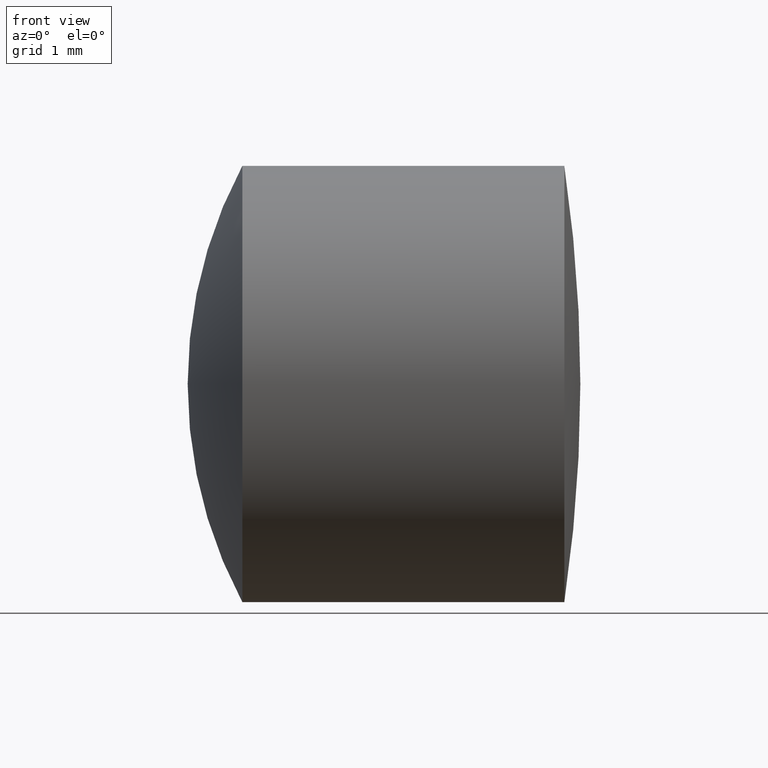
[diagram: clean part render]
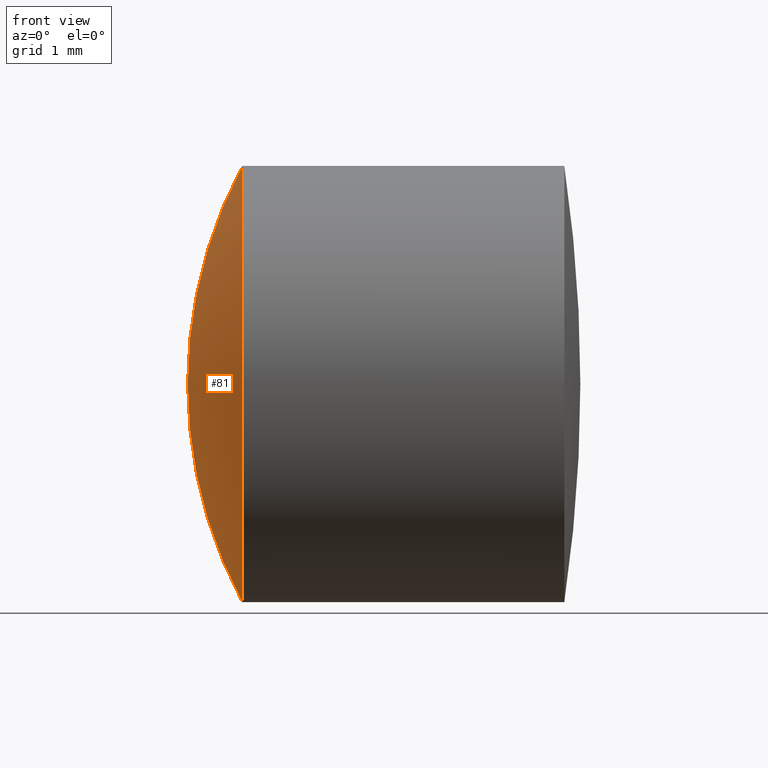
[diagram: same view with one face highlighted and labeled with its STEP entity id]
A machine part, front view. The second image highlights one B-rep face of the part: STEP entity #81.
In plain terms, the highlighted spherical surface has radius 5.3 mm.
Its self-contained STEP definition (entity closure, byte-faithful):
#7 = ORIENTED_EDGE ( 'NONE', *, *, #286, .F. ) ;
#9 = DIRECTION ( 'NONE',  ( 0.0000000000000000000, 0.0000000000000000000, 1.000000000000000000 ) ) ;
#11 = SPHERICAL_SURFACE ( 'NONE', #292, 5.299999999999998900 ) ;
#16 = DIRECTION ( 'NONE',  ( 0.0000000000000000000, 0.0000000000000000000, 1.000000000000000000 ) ) ;
#23 = DIRECTION ( 'NONE',  ( -0.0000000000000000000, 1.000000000000000000, 1.224646799147353200E-016 ) ) ;
#26 = CARTESIAN_POINT ( 'NONE',  ( 1.904885754841989100, 0.0000000000000000000, 0.0000000000000000000 ) ) ;
#37 = EDGE_CURVE ( 'NONE', #245, #266, #238, .T. ) ;
#53 = EDGE_CURVE ( 'NONE', #210, #245, #65, .T. ) ;
#65 = CIRCLE ( 'NONE', #181, 2.500000000000000000 ) ;
#81 = ADVANCED_FACE ( 'NONE', ( #105 ), #11, .T. ) ;
#82 = AXIS2_PLACEMENT_3D ( 'NONE', #247, #23, #198 ) ;
#83 = ORIENTED_EDGE ( 'NONE', *, *, #37, .T. ) ;
#105 = FACE_OUTER_BOUND ( 'NONE', #236, .T. ) ;
#122 = CARTESIAN_POINT ( 'NONE',  ( 6.578214333061157300, 0.0000000000000000000, -1.863472577360591900E-017 ) ) ;
#133 = AXIS2_PLACEMENT_3D ( 'NONE', #122, #317, #251 ) ;
#145 = CIRCLE ( 'NONE', #82, 5.299999999999998900 ) ;
#170 = CARTESIAN_POINT ( 'NONE',  ( 1.278214333061158200, 0.0000000000000000000, 3.058966760004426300E-016 ) ) ;
#181 = AXIS2_PLACEMENT_3D ( 'NONE', #26, #262, #16 ) ;
#195 = DIRECTION ( 'NONE',  ( 0.0000000000000000000, 1.000000000000000000, 0.0000000000000000000 ) ) ;
#198 = DIRECTION ( 'NONE',  ( 0.0000000000000000000, -1.224646799147353200E-016, 1.000000000000000000 ) ) ;
#200 = ORIENTED_EDGE ( 'NONE', *, *, #53, .T. ) ;
#210 = VERTEX_POINT ( 'NONE', #260 ) ;
#224 = CARTESIAN_POINT ( 'NONE',  ( 6.578214333061157300, 0.0000000000000000000, -1.863472577360591900E-017 ) ) ;
#236 = EDGE_LOOP ( 'NONE', ( #7, #200, #83 ) ) ;
#238 = CIRCLE ( 'NONE', #133, 5.299999999999998900 ) ;
#245 = VERTEX_POINT ( 'NONE', #344 ) ;
#247 = CARTESIAN_POINT ( 'NONE',  ( 6.578214333061157300, 0.0000000000000000000, -1.863472577360591900E-017 ) ) ;
#251 = DIRECTION ( 'NONE',  ( 0.0000000000000000000, 0.0000000000000000000, -1.000000000000000000 ) ) ;
#260 = CARTESIAN_POINT ( 'NONE',  ( 1.904885754841988900, 3.061616997868383100E-016, -2.500000000000000000 ) ) ;
#262 = DIRECTION ( 'NONE',  ( -1.000000000000000000, -0.0000000000000000000, -0.0000000000000000000 ) ) ;
#266 = VERTEX_POINT ( 'NONE', #170 ) ;
#286 = EDGE_CURVE ( 'NONE', #210, #266, #145, .T. ) ;
#292 = AXIS2_PLACEMENT_3D ( 'NONE', #224, #195, #9 ) ;
#317 = DIRECTION ( 'NONE',  ( 0.0000000000000000000, -1.000000000000000000, 0.0000000000000000000 ) ) ;
#344 = CARTESIAN_POINT ( 'NONE',  ( 1.904885754841988900, 0.0000000000000000000, 2.500000000000000000 ) ) ;